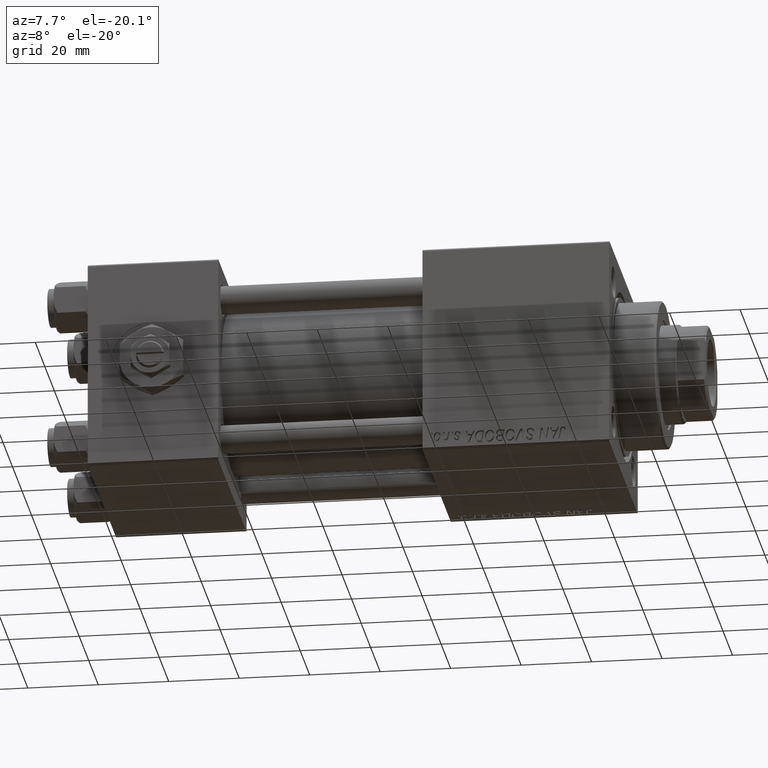
[diagram: clean part render]
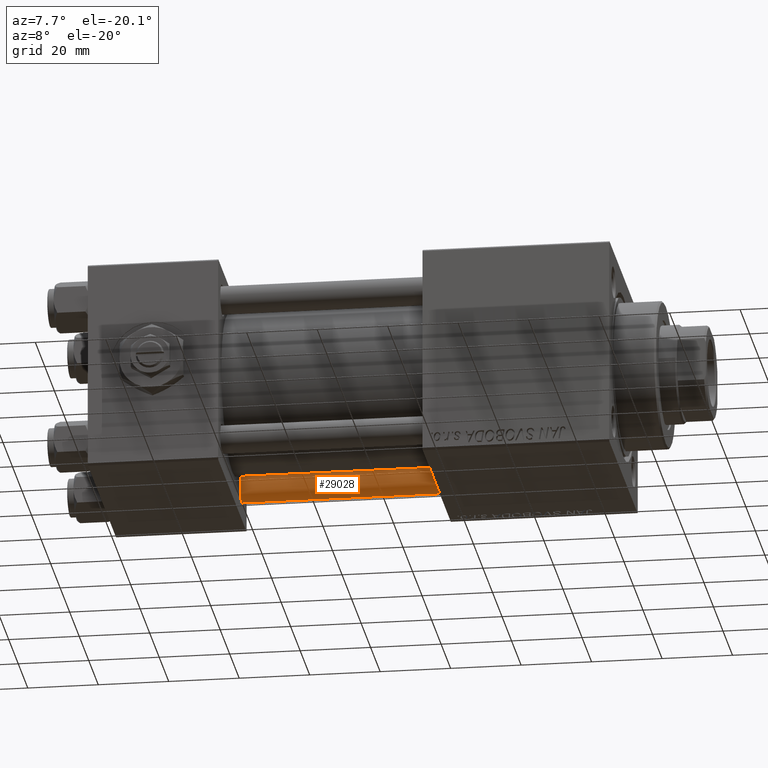
[diagram: same view with one face highlighted and labeled with its STEP entity id]
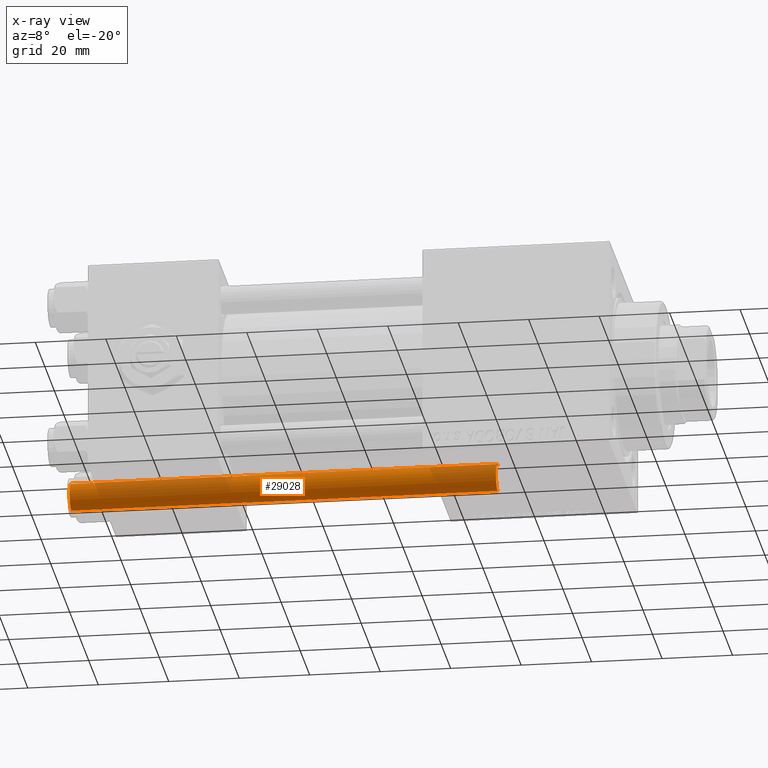
[diagram: x-ray of the same camera — body ghosted, the highlighted face saturated]
A machine part, auxiliary view. The second image highlights one B-rep face of the part: STEP entity #29028.
The next image is the same camera in x-ray: the body ghosted, the highlighted face saturated — about 27% of this face is hidden behind the body in this view.
In plain terms, the highlighted cylindrical surface (edge-blend (fillet) strip) has radius 4 mm, axis along (1, -0, 0).
Its self-contained STEP definition (entity closure, byte-faithful):
#1944 = VERTEX_POINT ( 'NONE', #4964 ) ;
#3471 = DIRECTION ( 'NONE',  ( -0.000000000000000000, -0.000000000000000000, -1.000000000000000000 ) ) ;
#4337 = CARTESIAN_POINT ( 'NONE',  ( -4.000000000000000000, 0.000000000000000000, 122.0000000000000000 ) ) ;
#4964 = CARTESIAN_POINT ( 'NONE',  ( -4.000000000000000000, 0.000000000000000000, 0.5000000000000559552 ) ) ;
#5360 = LINE ( 'NONE', #4337, #33769 ) ;
#6431 = LINE ( 'NONE', #34269, #23305 ) ;
#8887 = VERTEX_POINT ( 'NONE', #16699 ) ;
#11156 = EDGE_CURVE ( 'NONE', #1944, #26164, #46559, .T. ) ;
#11527 = ORIENTED_EDGE ( 'NONE', *, *, #40447, .T. ) ;
#13098 = ORIENTED_EDGE ( 'NONE', *, *, #11156, .T. ) ;
#13307 = DIRECTION ( 'NONE',  ( -0.000000000000000000, -0.000000000000000000, 1.000000000000000000 ) ) ;
#14215 = EDGE_LOOP ( 'NONE', ( #32406, #49064, #11527, #13098 ) ) ;
#15056 = FACE_OUTER_BOUND ( 'NONE', #14215, .T. ) ;
#16699 = CARTESIAN_POINT ( 'NONE',  ( -4.000000000000000000, 0.000000000000000000, 121.5000000000000426 ) ) ;
#19560 = CARTESIAN_POINT ( 'NONE',  ( 0.000000000000000000, 0.000000000000000000, 121.5000000000000426 ) ) ;
#21973 = EDGE_CURVE ( 'NONE', #30614, #8887, #41740, .T. ) ;
#22606 = AXIS2_PLACEMENT_3D ( 'NONE', #39448, #3471, #51530 ) ;
#23305 = VECTOR ( 'NONE', #31100, 1000.000000000000000 ) ;
#24709 = AXIS2_PLACEMENT_3D ( 'NONE', #49531, #13307, #29304 ) ;
#25166 = EDGE_CURVE ( 'NONE', #30614, #26164, #6431, .T. ) ;
#26164 = VERTEX_POINT ( 'NONE', #51081 ) ;
#29028 = ADVANCED_FACE ( 'NONE', ( #15056 ), #50761, .T. ) ;
#29304 = DIRECTION ( 'NONE',  ( 1.000000000000000000, 0.000000000000000000, 0.000000000000000000 ) ) ;
#30614 = VERTEX_POINT ( 'NONE', #49509 ) ;
#31100 = DIRECTION ( 'NONE',  ( -0.000000000000000000, -0.000000000000000000, -1.000000000000000000 ) ) ;
#32406 = ORIENTED_EDGE ( 'NONE', *, *, #25166, .F. ) ;
#32935 = DIRECTION ( 'NONE',  ( -0.000000000000000000, -0.000000000000000000, -1.000000000000000000 ) ) ;
#33769 = VECTOR ( 'NONE', #32935, 1000.000000000000000 ) ;
#34269 = CARTESIAN_POINT ( 'NONE',  ( 4.000000000000000000, 4.898587196589411843E-16, 122.0000000000000000 ) ) ;
#35574 = DIRECTION ( 'NONE',  ( 0.000000000000000000, 0.000000000000000000, -1.000000000000000000 ) ) ;
#39448 = CARTESIAN_POINT ( 'NONE',  ( 0.000000000000000000, 0.000000000000000000, 122.0000000000000000 ) ) ;
#40447 = EDGE_CURVE ( 'NONE', #8887, #1944, #5360, .T. ) ;
#40913 = AXIS2_PLACEMENT_3D ( 'NONE', #19560, #35574, #43457 ) ;
#41740 = CIRCLE ( 'NONE', #40913, 4.000000000000000000 ) ;
#43457 = DIRECTION ( 'NONE',  ( 1.000000000000000000, 0.000000000000000000, 0.000000000000000000 ) ) ;
#46559 = CIRCLE ( 'NONE', #24709, 4.000000000000000000 ) ;
#49064 = ORIENTED_EDGE ( 'NONE', *, *, #21973, .T. ) ;
#49509 = CARTESIAN_POINT ( 'NONE',  ( 4.000000000000000000, 4.898587196589411843E-16, 121.5000000000000426 ) ) ;
#49531 = CARTESIAN_POINT ( 'NONE',  ( 0.000000000000000000, 0.000000000000000000, 0.5000000000000559552 ) ) ;
#50761 = CYLINDRICAL_SURFACE ( 'NONE', #22606, 4.000000000000000000 ) ;
#51081 = CARTESIAN_POINT ( 'NONE',  ( 4.000000000000000000, 4.898587196589411843E-16, 0.5000000000000559552 ) ) ;
#51530 = DIRECTION ( 'NONE',  ( -1.000000000000000000, 0.000000000000000000, 0.000000000000000000 ) ) ;